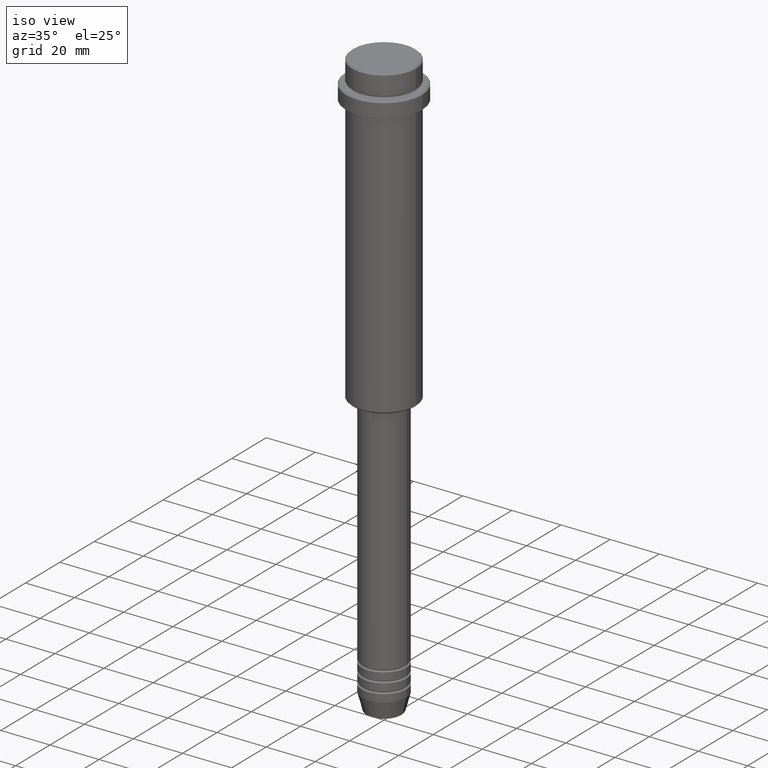
[diagram: clean part render]
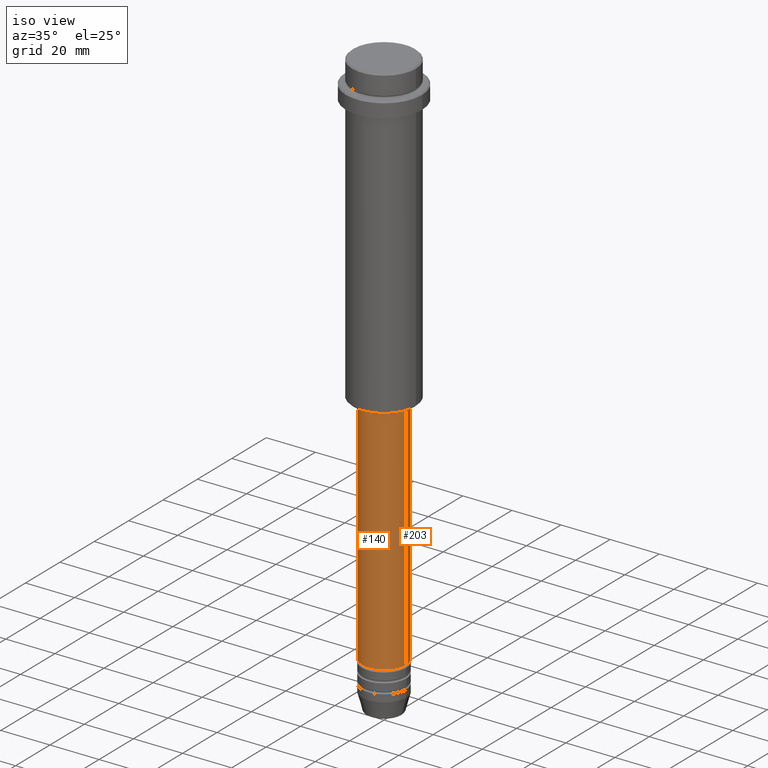
[diagram: same view with one multi-face feature highlighted, each face labeled with its STEP entity id]
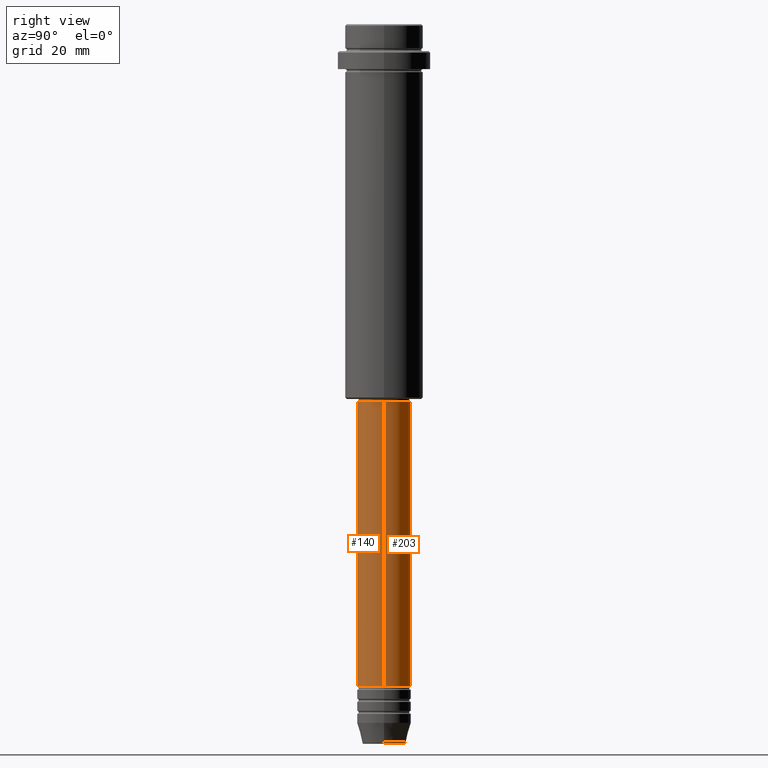
[diagram: same view with one multi-face feature highlighted, each face labeled with its STEP entity id]
A machine part, iso view. The highlighted faces form ONE feature: a constant-radius fillet chain: 2 tangent blend faces with common blend radius 9 mm. The faces share edges in the B-rep.
A second angle (right view) of the same feature is appended — it is thin or edge-on in the first view.
Their STEP definitions:
[1] entity #140 (Cylinder):
#38 = CARTESIAN_POINT ( 'NONE',  ( 0.000000000000000000, 0.000000000000000000, 0.000000000000000000 ) ) ;
#53 = EDGE_CURVE ( 'NONE', #914, #1066, #151, .T. ) ;
#108 = LINE ( 'NONE', #992, #1347 ) ;
#140 = ADVANCED_FACE ( 'NONE', ( #1026 ), #1240, .T. ) ;
#151 = CIRCLE ( 'NONE', #970, 9.000000000000000000 ) ;
#215 = VERTEX_POINT ( 'NONE', #1116 ) ;
#236 = EDGE_CURVE ( 'NONE', #215, #728, #1408, .T. ) ;
#238 = DIRECTION ( 'NONE',  ( 1.000000000000000000, 0.000000000000000000, 0.000000000000000000 ) ) ;
#282 = ORIENTED_EDGE ( 'NONE', *, *, #439, .F. ) ;
#284 = DIRECTION ( 'NONE',  ( -0.000000000000000000, -0.000000000000000000, 1.000000000000000000 ) ) ;
#378 = DIRECTION ( 'NONE',  ( 1.000000000000000000, 0.000000000000000000, 0.000000000000000000 ) ) ;
#390 = CARTESIAN_POINT ( 'NONE',  ( 0.000000000000000000, 0.000000000000000000, -220.9999999999998863 ) ) ;
#422 = CARTESIAN_POINT ( 'NONE',  ( 9.000000000000001776, 0.000000000000000000, -126.0000000000000000 ) ) ;
#439 = EDGE_CURVE ( 'NONE', #914, #215, #727, .T. ) ;
#491 = DIRECTION ( 'NONE',  ( -0.000000000000000000, -0.000000000000000000, 1.000000000000000000 ) ) ;
#513 = DIRECTION ( 'NONE',  ( -0.000000000000000000, -0.000000000000000000, 1.000000000000000000 ) ) ;
#576 = VECTOR ( 'NONE', #513, 1000.000000000000000 ) ;
#634 = CARTESIAN_POINT ( 'NONE',  ( -9.000000000000001776, 1.102182119232617911E-15, 0.000000000000000000 ) ) ;
#727 = LINE ( 'NONE', #634, #576 ) ;
#728 = VERTEX_POINT ( 'NONE', #422 ) ;
#770 = DIRECTION ( 'NONE',  ( -0.000000000000000000, -0.000000000000000000, 1.000000000000000000 ) ) ;
#791 = EDGE_CURVE ( 'NONE', #1066, #728, #108, .T. ) ;
#804 = AXIS2_PLACEMENT_3D ( 'NONE', #1020, #770, #238 ) ;
#841 = DIRECTION ( 'NONE',  ( 1.000000000000000000, 0.000000000000000000, 0.000000000000000000 ) ) ;
#849 = ORIENTED_EDGE ( 'NONE', *, *, #791, .T. ) ;
#914 = VERTEX_POINT ( 'NONE', #1144 ) ;
#970 = AXIS2_PLACEMENT_3D ( 'NONE', #390, #284, #378 ) ;
#992 = CARTESIAN_POINT ( 'NONE',  ( 9.000000000000001776, 0.000000000000000000, 0.000000000000000000 ) ) ;
#1020 = CARTESIAN_POINT ( 'NONE',  ( 0.000000000000000000, 0.000000000000000000, -126.0000000000000000 ) ) ;
#1026 = FACE_OUTER_BOUND ( 'NONE', #1052, .T. ) ;
#1034 = AXIS2_PLACEMENT_3D ( 'NONE', #38, #491, #841 ) ;
#1052 = EDGE_LOOP ( 'NONE', ( #282, #1108, #849, #1399 ) ) ;
#1066 = VERTEX_POINT ( 'NONE', #1369 ) ;
#1108 = ORIENTED_EDGE ( 'NONE', *, *, #53, .T. ) ;
#1116 = CARTESIAN_POINT ( 'NONE',  ( -9.000000000000001776, 1.102182119232617911E-15, -126.0000000000000000 ) ) ;
#1144 = CARTESIAN_POINT ( 'NONE',  ( -9.000000000000000000, 1.102182119232617714E-15, -220.9999999999998863 ) ) ;
#1240 = CYLINDRICAL_SURFACE ( 'NONE', #1034, 9.000000000000001776 ) ;
#1347 = VECTOR ( 'NONE', #1409, 1000.000000000000000 ) ;
#1369 = CARTESIAN_POINT ( 'NONE',  ( 9.000000000000000000, 0.000000000000000000, -220.9999999999998863 ) ) ;
#1399 = ORIENTED_EDGE ( 'NONE', *, *, #236, .F. ) ;
#1408 = CIRCLE ( 'NONE', #804, 9.000000000000001776 ) ;
#1409 = DIRECTION ( 'NONE',  ( -0.000000000000000000, -0.000000000000000000, 1.000000000000000000 ) ) ;
[2] entity #203 (Cylinder):
#44 = EDGE_CURVE ( 'NONE', #1066, #914, #226, .T. ) ;
#68 = ORIENTED_EDGE ( 'NONE', *, *, #791, .F. ) ;
#108 = LINE ( 'NONE', #992, #1347 ) ;
#175 = DIRECTION ( 'NONE',  ( 1.000000000000000000, 0.000000000000000000, 0.000000000000000000 ) ) ;
#203 = ADVANCED_FACE ( 'NONE', ( #1196 ), #1323, .T. ) ;
#215 = VERTEX_POINT ( 'NONE', #1116 ) ;
#226 = CIRCLE ( 'NONE', #713, 9.000000000000000000 ) ;
#422 = CARTESIAN_POINT ( 'NONE',  ( 9.000000000000001776, 0.000000000000000000, -126.0000000000000000 ) ) ;
#439 = EDGE_CURVE ( 'NONE', #914, #215, #727, .T. ) ;
#513 = DIRECTION ( 'NONE',  ( -0.000000000000000000, -0.000000000000000000, 1.000000000000000000 ) ) ;
#576 = VECTOR ( 'NONE', #513, 1000.000000000000000 ) ;
#587 = CIRCLE ( 'NONE', #1224, 9.000000000000001776 ) ;
#620 = CARTESIAN_POINT ( 'NONE',  ( 0.000000000000000000, 0.000000000000000000, -126.0000000000000000 ) ) ;
#634 = CARTESIAN_POINT ( 'NONE',  ( -9.000000000000001776, 1.102182119232617911E-15, 0.000000000000000000 ) ) ;
#693 = CARTESIAN_POINT ( 'NONE',  ( 0.000000000000000000, 0.000000000000000000, -220.9999999999998863 ) ) ;
#713 = AXIS2_PLACEMENT_3D ( 'NONE', #693, #1056, #825 ) ;
#727 = LINE ( 'NONE', #634, #576 ) ;
#728 = VERTEX_POINT ( 'NONE', #422 ) ;
#763 = CARTESIAN_POINT ( 'NONE',  ( 0.000000000000000000, 0.000000000000000000, 0.000000000000000000 ) ) ;
#775 = DIRECTION ( 'NONE',  ( 1.000000000000000000, 0.000000000000000000, 0.000000000000000000 ) ) ;
#791 = EDGE_CURVE ( 'NONE', #1066, #728, #108, .T. ) ;
#822 = ORIENTED_EDGE ( 'NONE', *, *, #439, .T. ) ;
#825 = DIRECTION ( 'NONE',  ( 1.000000000000000000, 0.000000000000000000, 0.000000000000000000 ) ) ;
#879 = DIRECTION ( 'NONE',  ( -0.000000000000000000, -0.000000000000000000, 1.000000000000000000 ) ) ;
#914 = VERTEX_POINT ( 'NONE', #1144 ) ;
#992 = CARTESIAN_POINT ( 'NONE',  ( 9.000000000000001776, 0.000000000000000000, 0.000000000000000000 ) ) ;
#995 = AXIS2_PLACEMENT_3D ( 'NONE', #763, #879, #775 ) ;
#1041 = EDGE_CURVE ( 'NONE', #728, #215, #587, .T. ) ;
#1056 = DIRECTION ( 'NONE',  ( -0.000000000000000000, -0.000000000000000000, 1.000000000000000000 ) ) ;
#1066 = VERTEX_POINT ( 'NONE', #1369 ) ;
#1116 = CARTESIAN_POINT ( 'NONE',  ( -9.000000000000001776, 1.102182119232617911E-15, -126.0000000000000000 ) ) ;
#1144 = CARTESIAN_POINT ( 'NONE',  ( -9.000000000000000000, 1.102182119232617714E-15, -220.9999999999998863 ) ) ;
#1156 = DIRECTION ( 'NONE',  ( -0.000000000000000000, -0.000000000000000000, 1.000000000000000000 ) ) ;
#1196 = FACE_OUTER_BOUND ( 'NONE', #1337, .T. ) ;
#1224 = AXIS2_PLACEMENT_3D ( 'NONE', #620, #1156, #175 ) ;
#1323 = CYLINDRICAL_SURFACE ( 'NONE', #995, 9.000000000000001776 ) ;
#1332 = ORIENTED_EDGE ( 'NONE', *, *, #44, .T. ) ;
#1337 = EDGE_LOOP ( 'NONE', ( #1332, #822, #1345, #68 ) ) ;
#1345 = ORIENTED_EDGE ( 'NONE', *, *, #1041, .F. ) ;
#1347 = VECTOR ( 'NONE', #1409, 1000.000000000000000 ) ;
#1369 = CARTESIAN_POINT ( 'NONE',  ( 9.000000000000000000, 0.000000000000000000, -220.9999999999998863 ) ) ;
#1409 = DIRECTION ( 'NONE',  ( -0.000000000000000000, -0.000000000000000000, 1.000000000000000000 ) ) ;